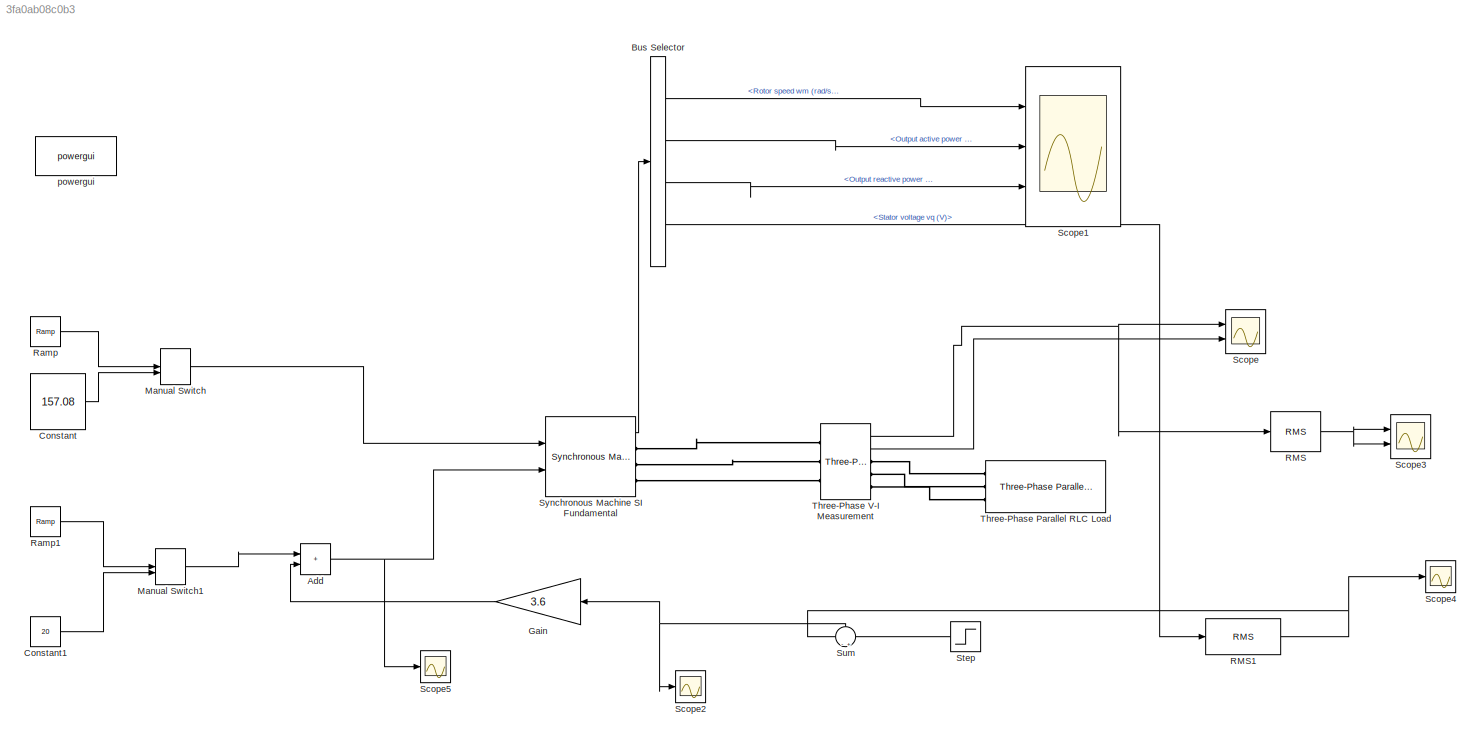
MODEL slx_3fa0ab08c0b3
KIND model
CONFIG AbsTol = auto
CONFIG EnableMultiTasking = off
CONFIG FixedStep = auto
CONFIG MaxStep = auto
CONFIG MinStep = auto
CONFIG RelTol = 1e-3
CONFIG SampleTimeConstraint = Unconstrained
CONFIG SolverName = VariableStepAuto
CONFIG StartTime = 0.0
CONFIG StopTime = 50
BLOCK [Sum] Add
  IconShape = rectangular
  Ports = [2, 1]
BLOCK [BusSelector] Bus Selector
  OutputSignals = Mechanical.Rotor speed  wm (rad/s),Output active power   Peo (W),Output reactive power  Qeo (W),dq0 components.Stator voltage  vq (V)
  Ports = [1, 4]
BLOCK [Constant] Constant
  Value = 157.08
BLOCK [Constant] Constant1
  Value = 20
BLOCK [Gain] Gain
  Gain = 3.6
  NameLocation = top
BLOCK [ManualSwitch] Manual Switch
  CurrentSetting = 0
BLOCK [ManualSwitch] Manual Switch1
  CurrentSetting = 0
BLOCK [Reference] RMS  REF=spsRMSLib/RMS
  Ports = [1, 1]
  SourceBlock = spsRMSLib/RMS
  SourceProductBaseCode = PS
  SourceType = RMS
BLOCK [Reference] RMS1  REF=dspstat3/RMS
  Ports = [1, 1]
  SourceBlock = dspstat3/RMS
  SourceProductBaseCode = DS
  SourceType = RMS
  UserDataPersistent = on
BLOCK [Reference] Ramp  REF=simulink/Sources/Ramp
  Ports = [0, 1]
  SourceBlock = simulink/Sources/Ramp
  SourceProductBaseCode = SL
  SourceType = Ramp
BLOCK [Reference] Ramp1  REF=simulink/Sources/Ramp
  Ports = [0, 1]
  SourceBlock = simulink/Sources/Ramp
  SourceProductBaseCode = SL
  SourceType = Ramp
BLOCK [Scope] Scope
  Floating = off
  NumInputPorts = 2
  Ports = [2]
  ScopeSpecificationString = Simulink.scopes.TimeScopeBlockCfg('CurrentConfiguration', extmgr.ConfigurationSet(extmgr.Configuration('Core','General UI',true),extmgr.Configuration('Core','Source UI',true),extmgr.Configuration('Sources','WiredSimulink',true),extmgr.Configuration('Visuals','Time Domain',true,'SerializedDisplays',{struct('MinYLimReal','-1077.3036','MaxYLimReal','1077.76467','YLabelReal','','MinYLimMag','  0.00000...<+2601ch>
BLOCK [Scope] Scope1
  Floating = off
  NumInputPorts = 3
  Ports = [3]
  ScopeSpecificationString = Simulink.scopes.TimeScopeBlockCfg('CurrentConfiguration', extmgr.ConfigurationSet(extmgr.Configuration('Core','General UI',true),extmgr.Configuration('Core','Source UI',true),extmgr.Configuration('Sources','WiredSimulink',true,'DataLoggingVariableName','ScopeData1'),extmgr.Configuration('Visuals','Time Domain',true,'SerializedDisplays',{struct('MinYLimReal','57.08','MaxYLimReal','257.08','YLabelRe...<+3087ch>
BLOCK [Scope] Scope2
  Floating = off
  NumInputPorts = 1
  Ports = [1]
  ScopeSpecificationString = Simulink.scopes.TimeScopeBlockCfg('CurrentConfiguration', extmgr.ConfigurationSet(extmgr.Configuration('Core','General UI',true),extmgr.Configuration('Core','Source UI',true),extmgr.Configuration('Sources','WiredSimulink',true,'DataLoggingVariableName','ScopeData2'),extmgr.Configuration('Visuals','Time Domain',true,'SerializedDisplays',{struct('MinYLimReal','-80.25118','MaxYLimReal','1354.69269','...<+1774ch>
BLOCK [Scope] Scope3
  Floating = off
  NumInputPorts = 2
  Ports = [2]
  ScopeSpecificationString = Simulink.scopes.TimeScopeBlockCfg('CurrentConfiguration', extmgr.ConfigurationSet(extmgr.Configuration('Core','General UI',true),extmgr.Configuration('Core','Source UI',true),extmgr.Configuration('Sources','WiredSimulink',true,'DataLoggingVariableName','ScopeData1'),extmgr.Configuration('Visuals','Time Domain',true,'SerializedDisplays',{struct('MinYLimReal','254.36048','MaxYLimReal','277.10362','Y...<+2404ch>
BLOCK [Scope] Scope4
  Floating = off
  NumInputPorts = 1
  Ports = [1]
  ScopeSpecificationString = Simulink.scopes.TimeScopeBlockCfg('CurrentConfiguration', extmgr.ConfigurationSet(extmgr.Configuration('Core','General UI',true),extmgr.Configuration('Core','Source UI',true),extmgr.Configuration('Sources','WiredSimulink',true,'DataLoggingVariableName','ScopeData1'),extmgr.Configuration('Visuals','Time Domain',true,'SerializedDisplays',{struct('MinYLimReal','-80.25118','MaxYLimReal','1354.69269','...<+1734ch>
BLOCK [Scope] Scope5
  Floating = off
  NumInputPorts = 1
  Ports = [1]
  ScopeSpecificationString = Simulink.scopes.TimeScopeBlockCfg('CurrentConfiguration', extmgr.ConfigurationSet(extmgr.Configuration('Core','General UI',true),extmgr.Configuration('Core','Source UI',true),extmgr.Configuration('Sources','WiredSimulink',true,'DataLoggingVariableName','ScopeData1'),extmgr.Configuration('Visuals','Time Domain',true,'SerializedDisplays',{struct('MinYLimReal','-80.25118','MaxYLimReal','1354.69269','...<+1749ch>
BLOCK [Step] Step
  After = 385.3
  NameLocation = top
  SampleTime = 0
BLOCK [Sum] Sum
  Inputs = -+
  NameLocation = right
  Ports = [2, 1]
BLOCK [Reference] Synchronous Machine SI Fundamental  REF=spsSynchronousMachineSIFundamentalLib/Synchronous Machine
SI Fundamental
  Ports = [2, 1, 0, 0, 0, 0, 3]
  SourceBlock = spsSynchronousMachineSIFundamentalLib/Synchronous Machine\nSI Fundamental
  SourceProductBaseCode = PS
  SourceType = Synchronous Machine
BLOCK [Reference] Three-Phase Parallel RLC Load  REF=spsThreePhaseParallelRLCLoadLib/Three-Phase
Parallel RLC Load
  AttributesFormatString = \n
  NameLocation = right
  Ports = [0, 0, 0, 0, 0, 3]
  SourceBlock = spsThreePhaseParallelRLCLoadLib/Three-Phase\nParallel RLC Load
  SourceProductBaseCode = PS
  SourceType = Three-Phase Parallel RLC Load
BLOCK [Reference] Three-Phase V-I Measurement  REF=spsThreePhaseVIMeasurementLib/Three-Phase
V-I Measurement
  Ports = [0, 2, 0, 0, 0, 3, 3]
  SourceBlock = spsThreePhaseVIMeasurementLib/Three-Phase\nV-I Measurement
  SourceProductBaseCode = PS
  SourceType = Three-Phase VI Measurement
BLOCK [Reference] powergui  REF=spspowerguiLib/powergui
  Ports = []
  Priority = 1
  SourceBlock = spspowerguiLib/powergui
  SourceProductBaseCode = PS
  SourceType = PSB option menu block
NET Add:1 -> Scope5:1, Synchronous Machine SI Fundamental:2
LINE Bus Selector:1 -> Scope1:1
LINE Bus Selector:2 -> Scope1:2
LINE Bus Selector:3 -> Scope1:3
LINE Bus Selector:4 -> RMS1:1
LINE Constant1:1 -> Manual Switch1:2
LINE Constant:1 -> Manual Switch:2
LINE Gain:1 -> Add:2
LINE Manual Switch1:1 -> Add:1
LINE Manual Switch:1 -> Synchronous Machine SI Fundamental:1
NET RMS1:1 -> Scope4:1, Sum:1
NET RMS:1 -> Scope3:1, Scope3:2
LINE Ramp1:1 -> Manual Switch1:1
LINE Ramp:1 -> Manual Switch:1
LINE Step:1 -> Sum:2
NET Sum:1 -> Gain:1, Scope2:1
LINE Synchronous Machine SI Fundamental:1 -> Bus Selector:1
NET Three-Phase V-I Measurement:1 -> RMS:1, Scope:1
LINE Three-Phase V-I Measurement:2 -> Scope:2
PLINE Synchronous Machine SI Fundamental:RConn1 -- Three-Phase V-I Measurement:LConn1
PLINE Synchronous Machine SI Fundamental:RConn2 -- Three-Phase V-I Measurement:LConn2
PLINE Synchronous Machine SI Fundamental:RConn3 -- Three-Phase V-I Measurement:LConn3
PLINE Three-Phase Parallel RLC Load:LConn1 -- Three-Phase V-I Measurement:RConn1
PLINE Three-Phase Parallel RLC Load:LConn2 -- Three-Phase V-I Measurement:RConn2
PLINE Three-Phase Parallel RLC Load:LConn3 -- Three-Phase V-I Measurement:RConn3
note: NET lines group one-source signal fan-out (src -> all destinations, sorted); 1:1 wires keep LINE
